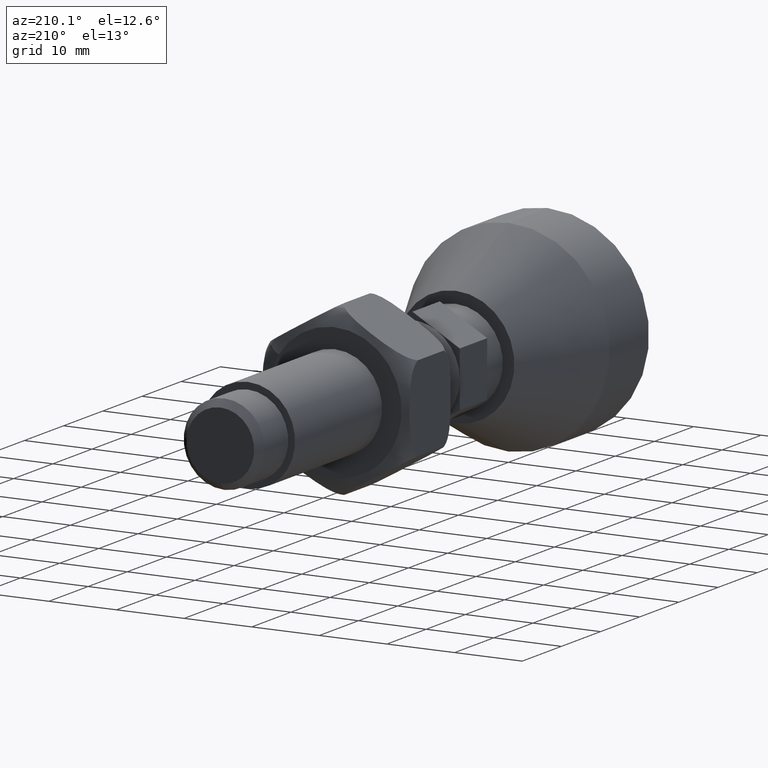
[diagram: clean part render]
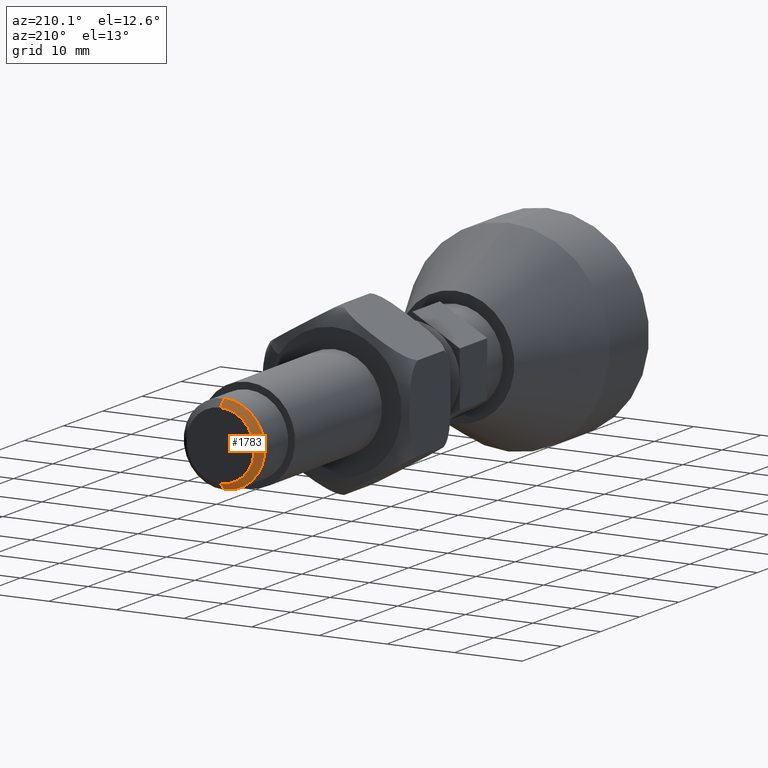
[diagram: same view with one face highlighted and labeled with its STEP entity id]
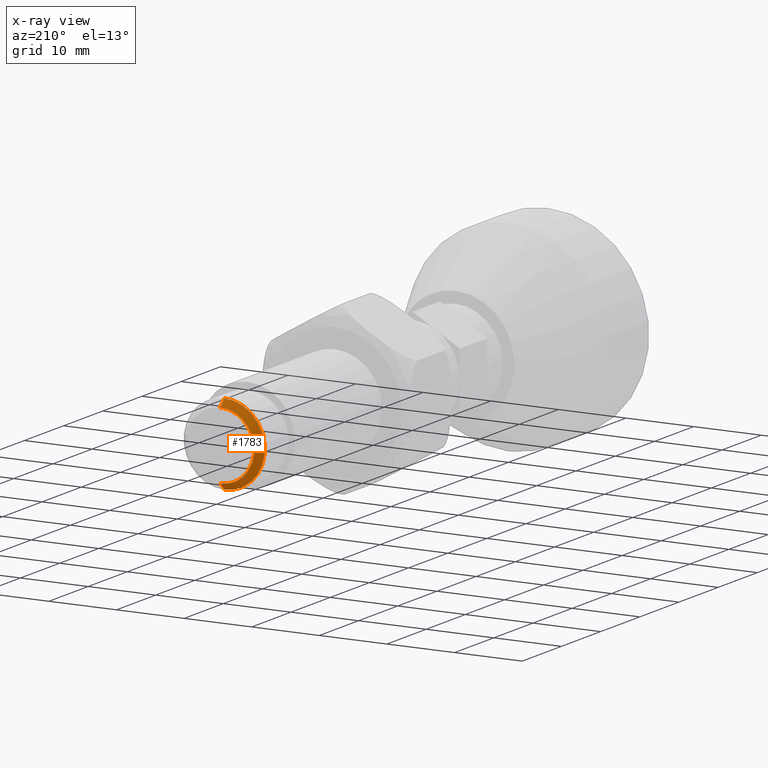
[diagram: x-ray of the same camera — body ghosted, the highlighted face saturated]
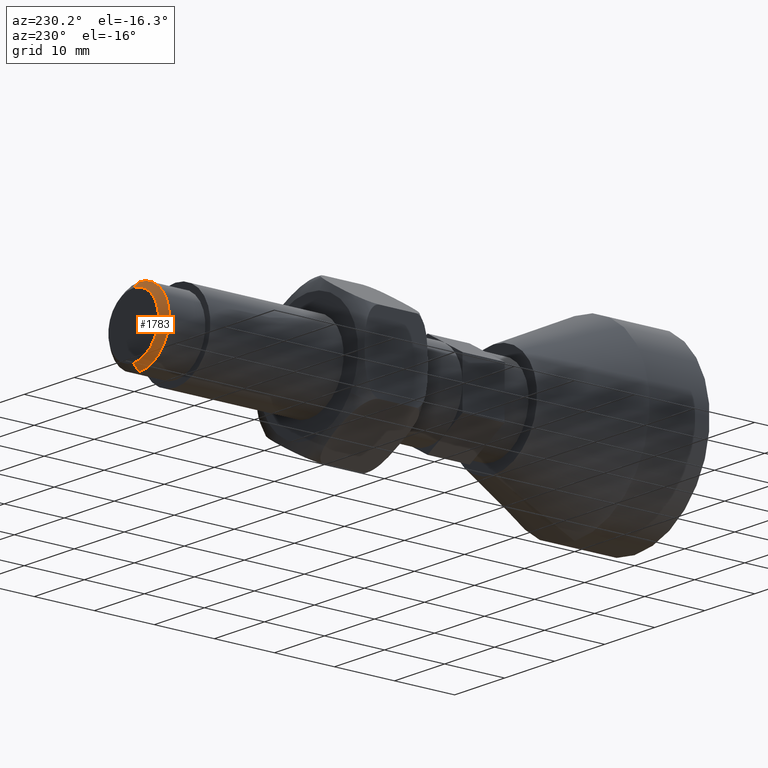
[diagram: same view with one face highlighted and labeled with its STEP entity id]
A machine part, auxiliary view. The second image highlights one B-rep face of the part: STEP entity #1783.
The next image is the same camera in x-ray: the body ghosted, the highlighted face saturated — about 0% of this face is hidden behind the body in this view.
A second angle (auxiliary view) of the same face is appended — the face is thin or edge-on in the first view.
In plain terms, the highlighted conical surface has half-angle 45 deg.
Its self-contained STEP definition (entity closure, byte-faithful):
#69 = ORIENTED_EDGE ( 'NONE', *, *, #1137, .F. ) ;
#86 = ORIENTED_EDGE ( 'NONE', *, *, #447, .F. ) ;
#87 = ORIENTED_EDGE ( 'NONE', *, *, #1788, .T. ) ;
#93 = ORIENTED_EDGE ( 'NONE', *, *, #470, .F. ) ;
#109 = LINE ( 'NONE', #1403, #111 ) ;
#111 = VECTOR ( 'NONE', #1476, 1000.000000000000100 ) ;
#140 = FACE_OUTER_BOUND ( 'NONE', #1509, .T. ) ;
#141 = CONICAL_SURFACE ( 'NONE', #1046, 5.000000000000004400, 0.7853981633974461700 ) ;
#145 = LINE ( 'NONE', #550, #146 ) ;
#146 = VECTOR ( 'NONE', #549, 1000.000000000000100 ) ;
#283 = CIRCLE ( 'NONE', #1076, 6.000000000000000900 ) ;
#447 = EDGE_CURVE ( 'NONE', #1676, #1685, #526, .T. ) ;
#470 = EDGE_CURVE ( 'NONE', #1685, #1625, #109, .T. ) ;
#526 = CIRCLE ( 'NONE', #1116, 5.000000000000004400 ) ;
#549 = DIRECTION ( 'NONE',  ( 0.0000000000000000000, -0.7071067811865489100, -0.7071067811865460200 ) ) ;
#550 = CARTESIAN_POINT ( 'NONE',  ( 0.0000000000000000000, 83.49999999999998600, -5.000000000000004400 ) ) ;
#561 = DIRECTION ( 'NONE',  ( 0.0000000000000000000, 0.0000000000000000000, -1.000000000000000000 ) ) ;
#562 = DIRECTION ( 'NONE',  ( 0.0000000000000000000, -1.000000000000000000, 0.0000000000000000000 ) ) ;
#563 = CARTESIAN_POINT ( 'NONE',  ( 0.0000000000000000000, 83.49999999999998600, 0.0000000000000000000 ) ) ;
#583 = CARTESIAN_POINT ( 'NONE',  ( 7.347880794884120700E-016, 82.49999999999998600, -6.000000000000000900 ) ) ;
#600 = CARTESIAN_POINT ( 'NONE',  ( 6.735557395310446000E-016, 83.49999999999998600, 5.000000000000004400 ) ) ;
#606 = CARTESIAN_POINT ( 'NONE',  ( 0.0000000000000000000, 83.49999999999998600, -5.000000000000004400 ) ) ;
#627 = CARTESIAN_POINT ( 'NONE',  ( 0.0000000000000000000, 82.49999999999998600, 6.000000000000000900 ) ) ;
#1046 = AXIS2_PLACEMENT_3D ( 'NONE', #563, #562, #561 ) ;
#1076 = AXIS2_PLACEMENT_3D ( 'NONE', #1434, #1331, #1278 ) ;
#1116 = AXIS2_PLACEMENT_3D ( 'NONE', #1406, #1467, #1240 ) ;
#1137 = EDGE_CURVE ( 'NONE', #1625, #1716, #283, .T. ) ;
#1240 = DIRECTION ( 'NONE',  ( 0.0000000000000000000, 0.0000000000000000000, 1.000000000000000000 ) ) ;
#1278 = DIRECTION ( 'NONE',  ( 0.0000000000000000000, 0.0000000000000000000, 1.000000000000000000 ) ) ;
#1331 = DIRECTION ( 'NONE',  ( 0.0000000000000000000, -1.000000000000000000, 0.0000000000000000000 ) ) ;
#1403 = CARTESIAN_POINT ( 'NONE',  ( 6.123233995736772200E-016, 83.49999999999998600, 5.000000000000004400 ) ) ;
#1406 = CARTESIAN_POINT ( 'NONE',  ( 0.0000000000000000000, 83.49999999999998600, 0.0000000000000000000 ) ) ;
#1434 = CARTESIAN_POINT ( 'NONE',  ( 0.0000000000000000000, 82.49999999999998600, 0.0000000000000000000 ) ) ;
#1467 = DIRECTION ( 'NONE',  ( 0.0000000000000000000, 1.000000000000000000, 0.0000000000000000000 ) ) ;
#1476 = DIRECTION ( 'NONE',  ( 8.659560562354913100E-017, -0.7071067811865489100, 0.7071067811865460200 ) ) ;
#1509 = EDGE_LOOP ( 'NONE', ( #93, #86, #87, #69 ) ) ;
#1625 = VERTEX_POINT ( 'NONE', #627 ) ;
#1676 = VERTEX_POINT ( 'NONE', #606 ) ;
#1685 = VERTEX_POINT ( 'NONE', #600 ) ;
#1716 = VERTEX_POINT ( 'NONE', #583 ) ;
#1783 = ADVANCED_FACE ( 'NONE', ( #140 ), #141, .T. ) ;
#1788 = EDGE_CURVE ( 'NONE', #1676, #1716, #145, .T. ) ;